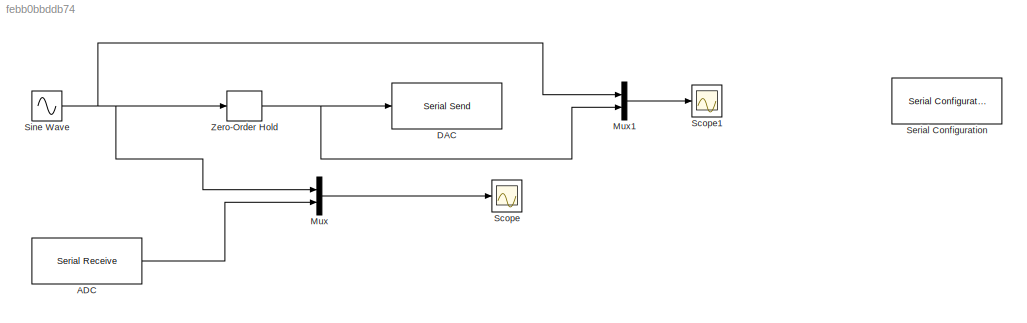
MODEL slx_febb0bbddb74
KIND model
CONFIG AbsTol = auto
CONFIG FixedStep = auto
CONFIG MaxStep = auto
CONFIG MinStep = auto
CONFIG RelTol = 1e-3
CONFIG SampleTimeConstraint = Unconstrained
CONFIG Solver = ode45
CONFIG SolverMode = Auto
CONFIG SolverName = ode45
CONFIG StartTime = 0.0
CONFIG StopTime = 10.0
BLOCK [Reference] ADC  REF=instrumentlib/Serial Receive
  ActionDataUnavailable = Output last received value
  ComPort = <Please select a port...>
  ComPortMenu = <Please select a port...>
  CustomValue = 0
  DataSize = [1 1]
  DataType = double
  EnableBlockingMode = on
  Ports = [0, 1]
  SampleTime = 2*0.01
  SourceBlock = instrumentlib/Serial Receive
  SourceType = Serial Receive
  Terminator = <none>
BLOCK [Reference] DAC   REF=instrumentlib/Serial Send
  ComPort = <Please select a port...>
  ComPortMenu = <Please select a port...>
  EnableBlockingMode = on
  Ports = [1]
  SourceBlock = instrumentlib/Serial Send
  SourceType = Serial Send
  Terminator = <none>
BLOCK [Mux] Mux
  DisplayOption = bar
  Inputs = 2
  Ports = [2, 1]
BLOCK [Mux] Mux1
  DisplayOption = bar
  Inputs = 2
  Ports = [2, 1]
BLOCK [Scope] Scope
  Floating = off
  NumInputPorts = 1
  Ports = [1]
BLOCK [Scope] Scope1
  Floating = off
  NumInputPorts = 1
  Ports = [1]
  SaveName = ScopeData1
BLOCK [Reference] Serial Configuration  REF=instrumentlib/Serial Configuration
  BaudRate = 9600
  ByteOrder = LittleEndian
  ComPort = <Please select a port...>
  ComPortMenu = <Please select a port...>
  DataBits = 8
  FlowControl = none
  Parity = none
  Ports = []
  Priority = -200000
  SourceBlock = instrumentlib/Serial Configuration
  SourceType = Serial Configuration
  StopBits = 1
  Timeout = 10
BLOCK [Sin] Sine Wave
  Amplitude = 2
  Frequency = 1/0.1
  Ports = [0, 1]
  SampleTime = 0
BLOCK [ZeroOrderHold] Zero-Order Hold
  SampleTime = 0.01
LINE ADC:1 -> Mux:2
LINE Mux1:1 -> Scope1:1
LINE Mux:1 -> Scope:1
NET Sine Wave:1 -> Mux1:1, Mux:1, Zero-Order Hold:1
NET Zero-Order Hold:1 -> DAC :1, Mux1:2
note: NET lines group one-source signal fan-out (src -> all destinations, sorted); 1:1 wires keep LINE
